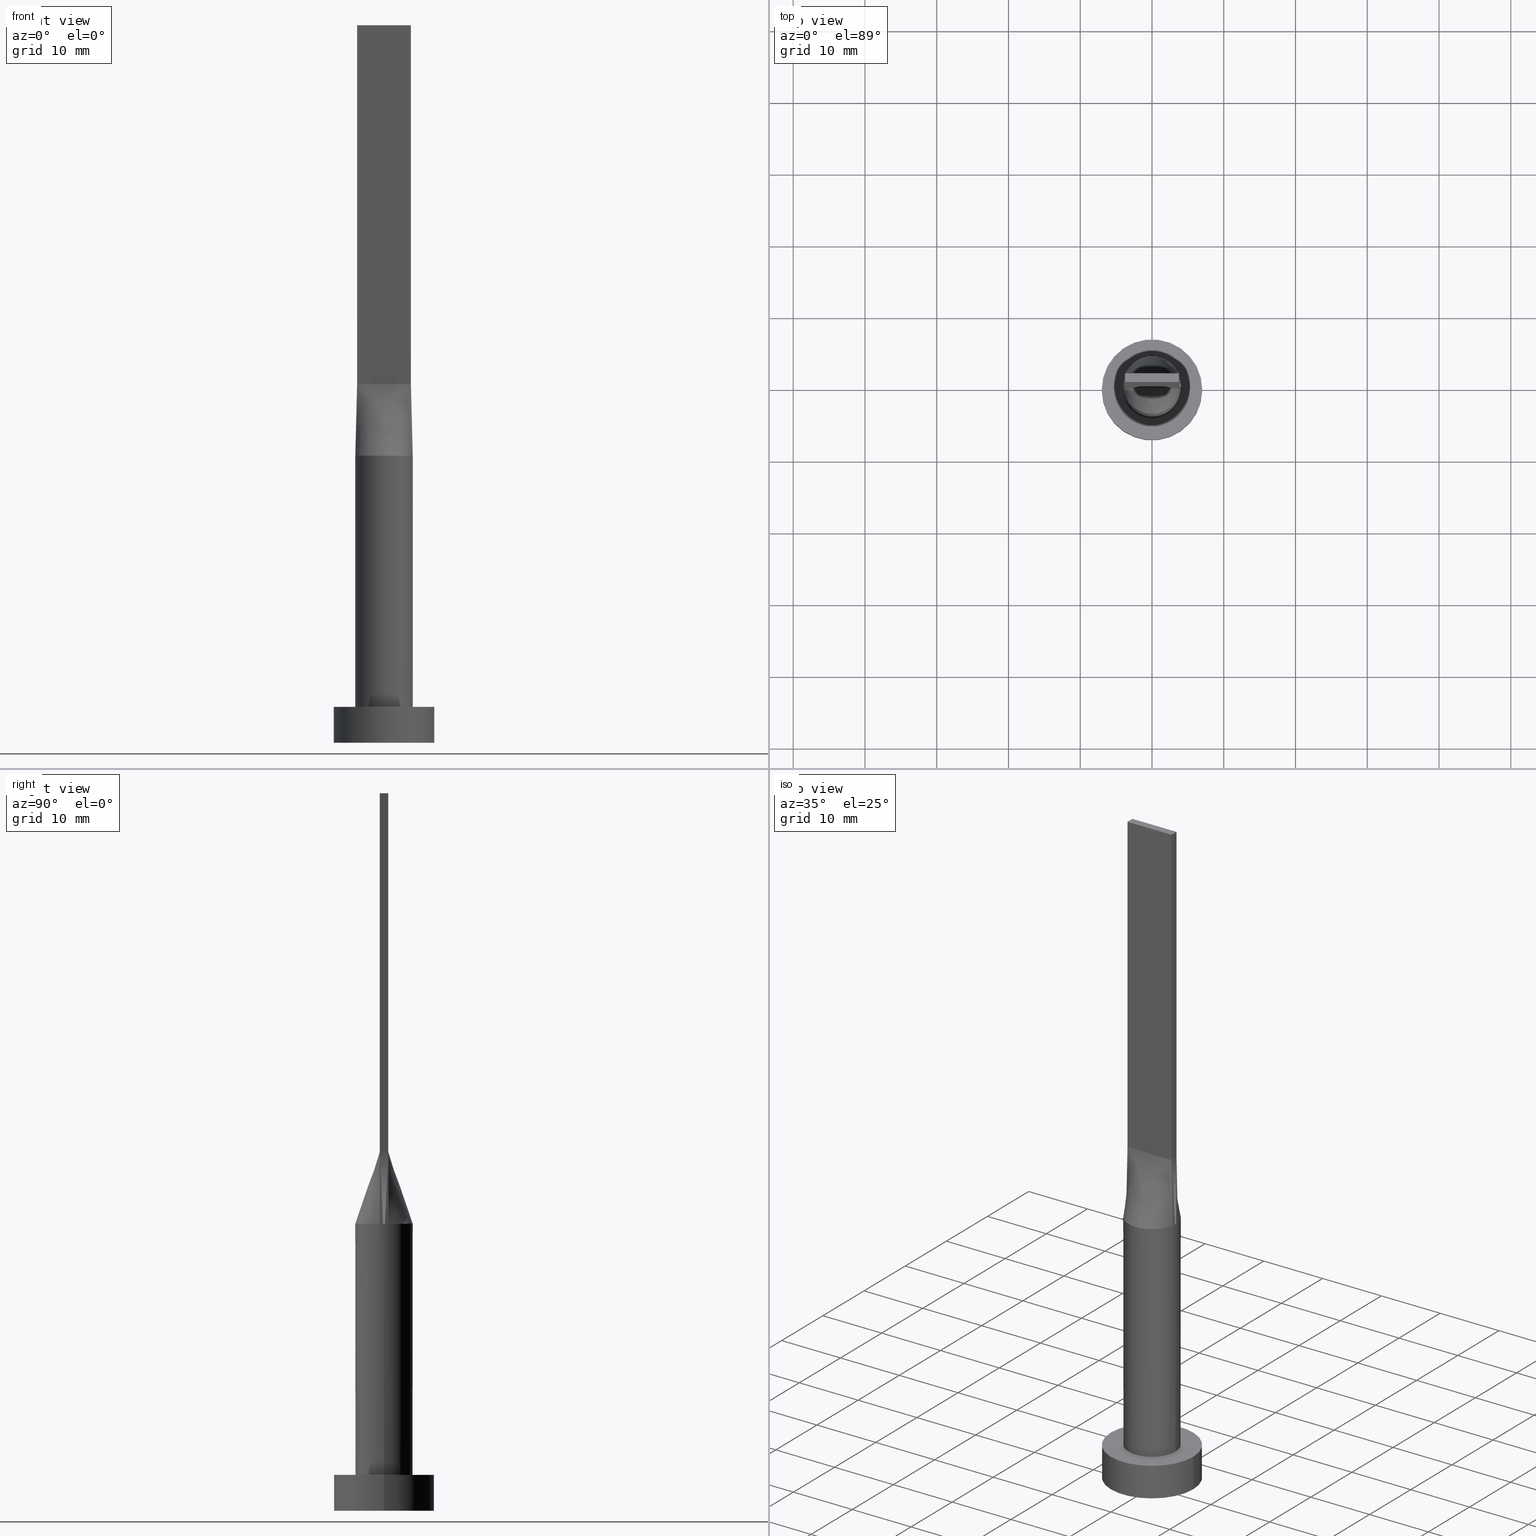
[diagram: canonical four-view strip — front | top / right | iso, engineering-drawing reading convention]
A machine part, canonical four-view strip (front | top / right | iso — engineering-drawing reading convention). The complete STEP part file that produces these views, byte-faithful:
ISO-10303-21;
HEADER;
FILE_DESCRIPTION (( 'STEP AP203' ),
    '1' );
FILE_NAME ('b42a.STEP',
    '2023-02-13T10:47:31',
    ( '' ),
    ( '' ),
    'SwSTEP 2.0',
    'SolidWorks 2019',
    '' );
FILE_SCHEMA (( 'CONFIG_CONTROL_DESIGN' ));
ENDSEC;

DATA;
#1 = DIRECTION ( 'NONE',  ( 1.000000000000000000, 0.000000000000000000, 0.000000000000000000 ) ) ;
#2 = EDGE_CURVE ( 'NONE', #550, #377, #433, .T. ) ;
#3 = VECTOR ( 'NONE', #465, 1000.000000000000000 ) ;
#4 = PRODUCT_DEFINITION_FORMATION_WITH_SPECIFIED_SOURCE ( 'LIBOVOLN�', '', #450, .NOT_KNOWN. ) ;
#5 = CARTESIAN_POINT ( 'NONE',  ( 3.750000000000000000, -0.5999999999999997558, 100.0000000000000000 ) ) ;
#6 = ORIENTED_EDGE ( 'NONE', *, *, #46, .F. ) ;
#7 = EDGE_CURVE ( 'NONE', #512, #522, #333, .T. ) ;
#8 = APPLICATION_PROTOCOL_DEFINITION ( 'international standard', 'config_control_design', 1994, #268 ) ;
#9 = CARTESIAN_POINT ( 'NONE',  ( 3.800365609718893367, -1.311488165564686614, 40.00000000000001421 ) ) ;
#10 = ADVANCED_FACE ( 'NONE', ( #198 ), #516, .F. ) ;
#11 = EDGE_LOOP ( 'NONE', ( #253, #124, #89, #259, #195, #507 ) ) ;
#12 = APPROVAL_STATUS ( 'not_yet_approved' ) ;
#13 = ADVANCED_FACE ( 'NONE', ( #36 ), #473, .T. ) ;
#14 = AXIS2_PLACEMENT_3D ( 'NONE', #97, #454, #223 ) ;
#15 = CIRCLE ( 'NONE', #135, 7.000000000000000000 ) ;
#16 = CARTESIAN_POINT ( 'NONE',  ( 1.250000000000001998, -0.5999999999999996447, 50.00000000000000000 ) ) ;
#17 = DIRECTION ( 'NONE',  ( 0.000000000000000000, 0.000000000000000000, 1.000000000000000000 ) ) ;
#18 = CARTESIAN_POINT ( 'NONE',  ( -3.849881263833410561, 0.6159810022133451746, 45.00000000000000000 ) ) ;
#19 = CARTESIAN_POINT ( 'NONE',  ( 0.000000000000000000, 0.000000000000000000, 5.000000000000000000 ) ) ;
#20 = CARTESIAN_POINT ( 'NONE',  ( -1.562500000000004441, 0.6000000000000000888, 50.00000000000000000 ) ) ;
#21 = CARTESIAN_POINT ( 'NONE',  ( -3.461914487322979905, 2.043998057340944197, 40.00000000000000711 ) ) ;
#22 = ORIENTED_EDGE ( 'NONE', *, *, #395, .F. ) ;
#23 = CARTESIAN_POINT ( 'NONE',  ( 0.5684794080625145130, 4.000000000000000000, 39.99999999999999289 ) ) ;
#24 = EDGE_CURVE ( 'NONE', #377, #481, #34, .T. ) ;
#25 = FACE_OUTER_BOUND ( 'NONE', #131, .T. ) ;
#26 = EDGE_LOOP ( 'NONE', ( #529, #437 ) ) ;
#27 = CARTESIAN_POINT ( 'NONE',  ( -2.127794970397209884, 3.430476893735948440, 39.99999999999999289 ) ) ;
#28 = ADVANCED_FACE ( 'NONE', ( #387 ), #252, .T. ) ;
#29 = CARTESIAN_POINT ( 'NONE',  ( -3.897760447583618948, -0.9569750049467102837, 40.00000000000000000 ) ) ;
#30 = ORIENTED_EDGE ( 'NONE', *, *, #7, .F. ) ;
#31 = CARTESIAN_POINT ( 'NONE',  ( 0.000000000000000000, 0.000000000000000000, 40.00000000000000000 ) ) ;
#32 = CARTESIAN_POINT ( 'NONE',  ( 0.000000000000000000, 0.000000000000000000, 40.00000000000000000 ) ) ;
#33 = CARTESIAN_POINT ( 'NONE',  ( 7.000000000000000000, 8.572527594031473190E-16, 5.000000000000000000 ) ) ;
#34 = LINE ( 'NONE', #527, #439 ) ;
#35 = CARTESIAN_POINT ( 'NONE',  ( 1.134810363096318664, 3.874001625491799050, 40.00000000000000000 ) ) ;
#36 = FACE_OUTER_BOUND ( 'NONE', #554, .T. ) ;
#37 = CARTESIAN_POINT ( 'NONE',  ( 0.5684794080625145130, 4.000000000000000000, 39.99999999999999289 ) ) ;
#38 = MANIFOLD_SOLID_BREP ( 'P�idat vysunut�m5', #98 ) ;
#39 = CARTESIAN_POINT ( 'NONE',  ( 3.949762527666821565, -0.6319620044266909265, 40.00000000000000000 ) ) ;
#40 = CARTESIAN_POINT ( 'NONE',  ( 0.5684794080625150681, -4.000000000000000888, 40.00000000000000000 ) ) ;
#41 = CIRCLE ( 'NONE', #76, 4.000000000000000000 ) ;
#42 = ORIENTED_EDGE ( 'NONE', *, *, #313, .F. ) ;
#43 = DIRECTION ( 'NONE',  ( -1.000000000000000000, 0.000000000000000000, 0.000000000000000000 ) ) ;
#44 = EDGE_CURVE ( 'NONE', #306, #360, #427, .T. ) ;
#45 = CARTESIAN_POINT ( 'NONE',  ( 0.3125000000000016098, -0.5999999999999995337, 50.00000000000000000 ) ) ;
#46 = EDGE_CURVE ( 'NONE', #368, #474, #242, .T. ) ;
#47 = LINE ( 'NONE', #5, #467 ) ;
#48 = LOCAL_TIME ( 11, 47, 31.00000000000000000, #90 ) ;
#49 = EDGE_LOOP ( 'NONE', ( #339, #358, #501, #546 ) ) ;
#50 = CARTESIAN_POINT ( 'NONE',  ( -1.562499999999998002, -0.5999999999999994227, 50.00000000000000000 ) ) ;
#51 = APPROVAL_STATUS ( 'not_yet_approved' ) ;
#52 = DIRECTION ( 'NONE',  ( -0.000000000000000000, 1.000000000000000000, -0.000000000000000000 ) ) ;
#53 = COORDINATED_UNIVERSAL_TIME_OFFSET ( 1, 0, .AHEAD. ) ;
#54 = CARTESIAN_POINT ( 'NONE',  ( 3.949762527666821565, -0.6319620044266891501, 40.00000000000000000 ) ) ;
#55 = EDGE_CURVE ( 'NONE', #377, #74, #200, .T. ) ;
#56 = CARTESIAN_POINT ( 'NONE',  ( 1.562499999999994893, 0.6000000000000000888, 50.00000000000000000 ) ) ;
#57 = CC_DESIGN_DATE_AND_TIME_ASSIGNMENT ( #320, #184, ( #105 ) ) ;
#58 = CARTESIAN_POINT ( 'NONE',  ( 3.750000000000000000, 0.6000000000000001998, 100.0000000000000000 ) ) ;
#59 = CARTESIAN_POINT ( 'NONE',  ( 3.800365609718893367, 1.311488165564687058, 40.00000000000000711 ) ) ;
#60 = CARTESIAN_POINT ( 'NONE',  ( 0.000000000000000000, 0.000000000000000000, 5.000000000000000000 ) ) ;
#61 = CARTESIAN_POINT ( 'NONE',  ( -3.800365609718893811, 1.311488165564686392, 40.00000000000000000 ) ) ;
#62 = AXIS2_PLACEMENT_3D ( 'NONE', #458, #363, #327 ) ;
#63 =( GEOMETRIC_REPRESENTATION_CONTEXT ( 3 ) GLOBAL_UNCERTAINTY_ASSIGNED_CONTEXT ( ( #245 ) ) GLOBAL_UNIT_ASSIGNED_CONTEXT ( ( #206, #238, #444 ) ) REPRESENTATION_CONTEXT ( 'NONE', 'WORKASPACE' ) );
#64 = VECTOR ( 'NONE', #225, 1000.000000000000000 ) ;
#65 = FACE_BOUND ( 'NONE', #160, .T. ) ;
#66 = DATE_AND_TIME ( #187, #349 ) ;
#67 = CARTESIAN_POINT ( 'NONE',  ( 3.461914487322979017, 2.043998057340944197, 40.00000000000000000 ) ) ;
#68 = CARTESIAN_POINT ( 'NONE',  ( -3.949762527666821565, -0.6319620044266894832, 40.00000000000000000 ) ) ;
#69 = EDGE_LOOP ( 'NONE', ( #334, #22, #217, #410 ) ) ;
#70 = CARTESIAN_POINT ( 'NONE',  ( -3.897760447583618504, 0.9569750049467115049, 40.00000000000000000 ) ) ;
#71 = LINE ( 'NONE', #102, #391 ) ;
#72 = DIRECTION ( 'NONE',  ( -1.000000000000000000, 0.000000000000000000, 0.000000000000000000 ) ) ;
#73 = VECTOR ( 'NONE', #271, 1000.000000000000000 ) ;
#74 = VERTEX_POINT ( 'NONE', #574 ) ;
#75 = DIRECTION ( 'NONE',  ( 0.000000000000000000, -0.000000000000000000, -1.000000000000000000 ) ) ;
#76 = AXIS2_PLACEMENT_3D ( 'NONE', #255, #482, #196 ) ;
#77 = DIRECTION ( 'NONE',  ( 0.000000000000000000, 0.000000000000000000, 1.000000000000000000 ) ) ;
#78 = VERTEX_POINT ( 'NONE', #384 ) ;
#79 = LINE ( 'NONE', #251, #185 ) ;
#80 = DIRECTION ( 'NONE',  ( 0.000000000000000000, 0.000000000000000000, 1.000000000000000000 ) ) ;
#81 = ORIENTED_EDGE ( 'NONE', *, *, #220, .T. ) ;
#82 = CARTESIAN_POINT ( 'NONE',  ( 3.750000000000000000, -0.5999999999999997558, 100.0000000000000000 ) ) ;
#83 = FACE_OUTER_BOUND ( 'NONE', #84, .T. ) ;
#84 = EDGE_LOOP ( 'NONE', ( #314, #183, #316, #470, #107 ) ) ;
#85 = AXIS2_PLACEMENT_3D ( 'NONE', #32, #248, #106 ) ;
#86 = CARTESIAN_POINT ( 'NONE',  ( -3.750000000000000000, -0.5999999999999993117, 50.00000000000000000 ) ) ;
#87 = VECTOR ( 'NONE', #213, 1000.000000000000000 ) ;
#88 = VECTOR ( 'NONE', #431, 1000.000000000000000 ) ;
#89 = ORIENTED_EDGE ( 'NONE', *, *, #565, .F. ) ;
#90 = COORDINATED_UNIVERSAL_TIME_OFFSET ( 1, 0, .AHEAD. ) ;
#91 = PERSON_AND_ORGANIZATION ( #224, #166 ) ;
#92 = CARTESIAN_POINT ( 'NONE',  ( -3.749999999999999556, 0.3999999999999975797, 50.00000000000000000 ) ) ;
#93 = PERSON_AND_ORGANIZATION_ROLE ( 'creator' ) ;
#94 = CC_DESIGN_PERSON_AND_ORGANIZATION_ASSIGNMENT ( #535, #301, ( #4 ) ) ;
#95 = DIRECTION ( 'NONE',  ( 0.000000000000000000, 0.000000000000000000, 1.000000000000000000 ) ) ;
#96 = CARTESIAN_POINT ( 'NONE',  ( -3.749999999999999556, -0.2000000000000034805, 50.00000000000000000 ) ) ;
#97 = CARTESIAN_POINT ( 'NONE',  ( 0.000000000000000000, 0.000000000000000000, 5.000000000000000000 ) ) ;
#98 = CLOSED_SHELL ( 'NONE', ( #28, #480, #285, #149, #10, #114, #171, #353, #222, #256, #347, #240, #417, #401, #13 ) ) ;
#99 = EDGE_LOOP ( 'NONE', ( #249, #291, #157, #461, #434 ) ) ;
#100 = DIRECTION ( 'NONE',  ( 1.000000000000000000, -5.782411586589357392E-17, 0.000000000000000000 ) ) ;
#101 = CARTESIAN_POINT ( 'NONE',  ( 7.000000000000000000, 8.572527594031473190E-16, 0.000000000000000000 ) ) ;
#102 = CARTESIAN_POINT ( 'NONE',  ( -3.750000000000000000, 0.6000000000000001998, 100.0000000000000000 ) ) ;
#103 = CARTESIAN_POINT ( 'NONE',  ( 3.219262664220058134, 2.422342486356523938, 39.99999999999999289 ) ) ;
#104 = CARTESIAN_POINT ( 'NONE',  ( 3.950116941581656604, -0.6320178829360038053, 40.00000000000000000 ) ) ;
#105 = SECURITY_CLASSIFICATION ( '', '', #452 ) ;
#106 = DIRECTION ( 'NONE',  ( 1.000000000000000000, 9.769962616701377556E-15, 0.000000000000000000 ) ) ;
#107 = ORIENTED_EDGE ( 'NONE', *, *, #177, .F. ) ;
#108 = CARTESIAN_POINT ( 'NONE',  ( 3.437499999999998668, 0.6000000000000001998, 50.00000000000000000 ) ) ;
#109 = CARTESIAN_POINT ( 'NONE',  ( -4.000000000000000000, 0.000000000000000000, 40.00000000000000000 ) ) ;
#110 = CARTESIAN_POINT ( 'NONE',  ( 4.000000000000000000, 4.898587196589412829E-16, 40.00000000000000000 ) ) ;
#111 = CARTESIAN_POINT ( 'NONE',  ( 3.750000000000000000, 0.6000000000000001998, 100.0000000000000000 ) ) ;
#112 = PRODUCT_DEFINITION_SHAPE ( 'NONE', 'NONE',  #420 ) ;
#113 = CARTESIAN_POINT ( 'NONE',  ( 0.000000000000000000, 0.000000000000000000, 100.0000000000000000 ) ) ;
#114 = ADVANCED_FACE ( 'NONE', ( #152 ), #561, .T. ) ;
#115 = ORIENTED_EDGE ( 'NONE', *, *, #203, .T. ) ;
#116 = CARTESIAN_POINT ( 'NONE',  ( 3.800365609718893367, 1.311488165564687058, 40.00000000000000711 ) ) ;
#117 = DIRECTION ( 'NONE',  ( 0.000000000000000000, -1.000000000000000000, 0.000000000000000000 ) ) ;
#118 = DIRECTION ( 'NONE',  ( 0.000000000000000000, 0.000000000000000000, 1.000000000000000000 ) ) ;
#119 = CARTESIAN_POINT ( 'NONE',  ( 3.219262664220059023, -2.422342486356523938, 40.00000000000000711 ) ) ;
#120 = ORIENTED_EDGE ( 'NONE', *, *, #555, .F. ) ;
#121 = CARTESIAN_POINT ( 'NONE',  ( -3.800365609718893811, 1.311488165564686392, 40.00000000000000000 ) ) ;
#122 = CARTESIAN_POINT ( 'NONE',  ( 3.749999999999999556, -0.3999999999999993006, 50.00000000000000000 ) ) ;
#123 = LINE ( 'NONE', #486, #398 ) ;
#124 = ORIENTED_EDGE ( 'NONE', *, *, #44, .F. ) ;
#125 = CARTESIAN_POINT ( 'NONE',  ( 3.999842262273348936, 9.852009208038395466E-16, 40.00000000000000000 ) ) ;
#126 = CARTESIAN_POINT ( 'NONE',  ( 3.125000000000000000, -0.5999999999999996447, 50.00000000000000000 ) ) ;
#127 = APPLICATION_PROTOCOL_DEFINITION ( 'international standard', 'config_control_design', 1994, #260 ) ;
#128 = EDGE_CURVE ( 'NONE', #457, #522, #500, .T. ) ;
#129 = ADVANCED_BREP_SHAPE_REPRESENTATION ( 'b42a', ( #38, #151 ), #63 ) ;
#130 = VERTEX_POINT ( 'NONE', #294 ) ;
#131 = EDGE_LOOP ( 'NONE', ( #326, #288, #275, #407 ) ) ;
#132 = APPROVAL_ROLE ( '' ) ;
#133 = EDGE_LOOP ( 'NONE', ( #81, #371, #205, #517 ) ) ;
#134 = CALENDAR_DATE ( 2023, 13, 2 ) ;
#135 = AXIS2_PLACEMENT_3D ( 'NONE', #19, #181, #509 ) ;
#136 = CARTESIAN_POINT ( 'NONE',  ( 3.750000000000000000, -0.5999999999999997558, 50.00000000000000000 ) ) ;
#137 = SHAPE_DEFINITION_REPRESENTATION ( #112, #129 ) ;
#138 = EDGE_CURVE ( 'NONE', #155, #78, #479, .T. ) ;
#139 = CARTESIAN_POINT ( 'NONE',  ( -2.187499999999998668, -0.5999999999999994227, 50.00000000000000000 ) ) ;
#140 = PERSON_AND_ORGANIZATION ( #224, #166 ) ;
#141 = CARTESIAN_POINT ( 'NONE',  ( -3.750000000000000000, 0.6000000000000001998, 100.0000000000000000 ) ) ;
#142 = CARTESIAN_POINT ( 'NONE',  ( -2.187500000000003109, 0.6000000000000000888, 50.00000000000000000 ) ) ;
#143 = LINE ( 'NONE', #322, #445 ) ;
#144 = APPROVAL_DATE_TIME ( #66, #539 ) ;
#145 = CARTESIAN_POINT ( 'NONE',  ( 3.897760447583618948, 0.9569750049467118380, 40.00000000000000000 ) ) ;
#146 = CARTESIAN_POINT ( 'NONE',  ( -3.750000000000000000, 0.6000000000000001998, 50.00000000000000000 ) ) ;
#147 = VECTOR ( 'NONE', #469, 1000.000000000000000 ) ;
#148 = PLANE ( 'NONE',  #318 ) ;
#149 = ADVANCED_FACE ( 'NONE', ( #65, #380 ), #148, .T. ) ;
#150 = ORIENTED_EDGE ( 'NONE', *, *, #456, .F. ) ;
#151 = AXIS2_PLACEMENT_3D ( 'NONE', #216, #305, #351 ) ;
#152 = FACE_OUTER_BOUND ( 'NONE', #11, .T. ) ;
#153 = DIRECTION ( 'NONE',  ( 1.000000000000000000, 0.000000000000000000, 0.000000000000000000 ) ) ;
#154 = CARTESIAN_POINT ( 'NONE',  ( 0.000000000000000000, 0.000000000000000000, 40.00000000000000000 ) ) ;
#155 = VERTEX_POINT ( 'NONE', #422 ) ;
#156 = CARTESIAN_POINT ( 'NONE',  ( -4.000000000000000000, 0.000000000000000000, 5.000000000000000000 ) ) ;
#157 = ORIENTED_EDGE ( 'NONE', *, *, #138, .T. ) ;
#158 = CIRCLE ( 'NONE', #221, 7.000000000000000000 ) ;
#159 = CIRCLE ( 'NONE', #232, 4.000000000000000000 ) ;
#160 = EDGE_LOOP ( 'NONE', ( #562, #201 ) ) ;
#161 = CARTESIAN_POINT ( 'NONE',  ( 2.553164211252348714, 3.116528153703943538, 40.00000000000000000 ) ) ;
#162 = CARTESIAN_POINT ( 'NONE',  ( -3.949762527666821565, -0.6319620044266894832, 40.00000000000000000 ) ) ;
#163 = FACE_OUTER_BOUND ( 'NONE', #99, .T. ) ;
#164 = CARTESIAN_POINT ( 'NONE',  ( 2.500000000000000444, -0.5999999999999996447, 50.00000000000000000 ) ) ;
#165 = PERSON_AND_ORGANIZATION ( #224, #166 ) ;
#166 = ORGANIZATION ( 'NEUR�EN�', 'NEUR�EN�', '' ) ;
#167 = PRODUCT_RELATED_PRODUCT_CATEGORY ( 'detail', '', ( #450 ) ) ;
#168 = CARTESIAN_POINT ( 'NONE',  ( -3.750000000000000000, 0.6000000000000001998, 100.0000000000000000 ) ) ;
#169 = AXIS2_PLACEMENT_3D ( 'NONE', #376, #524, #72 ) ;
#170 = CARTESIAN_POINT ( 'NONE',  ( -2.499999999999998668, -0.5999999999999994227, 50.00000000000000000 ) ) ;
#171 = ADVANCED_FACE ( 'NONE', ( #25 ), #581, .T. ) ;
#172 = AXIS2_PLACEMENT_3D ( 'NONE', #552, #375, #231 ) ;
#173 = APPROVAL_DATE_TIME ( #408, #446 ) ;
#174 = CC_DESIGN_APPROVAL ( #539, ( #105 ) ) ;
#175 = CARTESIAN_POINT ( 'NONE',  ( 3.750000000000000000, -0.5999999999999997558, 100.0000000000000000 ) ) ;
#176 = CARTESIAN_POINT ( 'NONE',  ( 2.553164211252348270, -3.116528153703943094, 39.99999999999999289 ) ) ;
#177 = EDGE_CURVE ( 'NONE', #130, #550, #440, .T. ) ;
#178 = VERTEX_POINT ( 'NONE', #499 ) ;
#179 = CARTESIAN_POINT ( 'NONE',  ( 3.750000000000000000, 0.6000000000000001998, 50.00000000000000000 ) ) ;
#180 = ORIENTED_EDGE ( 'NONE', *, *, #412, .F. ) ;
#181 = DIRECTION ( 'NONE',  ( 0.000000000000000000, 0.000000000000000000, 1.000000000000000000 ) ) ;
#182 = LINE ( 'NONE', #277, #87 ) ;
#183 = ORIENTED_EDGE ( 'NONE', *, *, #365, .T. ) ;
#184 = DATE_TIME_ROLE ( 'classification_date' ) ;
#185 = VECTOR ( 'NONE', #405, 1000.000000000000000 ) ;
#186 = ORIENTED_EDGE ( 'NONE', *, *, #560, .F. ) ;
#187 = CALENDAR_DATE ( 2023, 13, 2 ) ;
#188 = CARTESIAN_POINT ( 'NONE',  ( -2.500000000000002665, 0.6000000000000000888, 50.00000000000000000 ) ) ;
#189 = DESIGN_CONTEXT ( 'detailed design', #268, 'design' ) ;
#190 = DIRECTION ( 'NONE',  ( -0.000000000000000000, -0.000000000000000000, -1.000000000000000000 ) ) ;
#191 = ORIENTED_EDGE ( 'NONE', *, *, #428, .T. ) ;
#192 = LINE ( 'NONE', #58, #311 ) ;
#193 = CARTESIAN_POINT ( 'NONE',  ( -3.219262664220059023, 2.422342486356523938, 39.99999999999998579 ) ) ;
#194 = CARTESIAN_POINT ( 'NONE',  ( -3.437499999999999556, -0.5999999999999993117, 50.00000000000000000 ) ) ;
#195 = ORIENTED_EDGE ( 'NONE', *, *, #7, .T. ) ;
#196 = DIRECTION ( 'NONE',  ( 1.000000000000000000, 0.000000000000000000, 0.000000000000000000 ) ) ;
#197 = DIRECTION ( 'NONE',  ( 0.000000000000000000, 0.000000000000000000, 1.000000000000000000 ) ) ;
#198 = FACE_OUTER_BOUND ( 'NONE', #26, .T. ) ;
#199 = ORIENTED_EDGE ( 'NONE', *, *, #2, .T. ) ;
#200 = LINE ( 'NONE', #569, #3 ) ;
#201 = ORIENTED_EDGE ( 'NONE', *, *, #128, .F. ) ;
#202 = DIRECTION ( 'NONE',  ( -0.000000000000000000, -0.000000000000000000, -1.000000000000000000 ) ) ;
#203 = EDGE_CURVE ( 'NONE', #178, #577, #123, .T. ) ;
#204 = CARTESIAN_POINT ( 'NONE',  ( -3.750000000000000000, 0.6000000000000001998, 50.00000000000000000 ) ) ;
#205 = ORIENTED_EDGE ( 'NONE', *, *, #304, .F. ) ;
#206 =( LENGTH_UNIT ( ) NAMED_UNIT ( * ) SI_UNIT ( .MILLI., .METRE. ) );
#207 = DIRECTION ( 'NONE',  ( 0.000000000000000000, -1.000000000000000000, 0.000000000000000000 ) ) ;
#208 = EDGE_CURVE ( 'NONE', #522, #457, #281, .T. ) ;
#209 = CC_DESIGN_APPROVAL ( #362, ( #420 ) ) ;
#210 = CARTESIAN_POINT ( 'NONE',  ( 3.461914487322980349, -2.043998057340943753, 40.00000000000002842 ) ) ;
#211 = EDGE_CURVE ( 'NONE', #78, #550, #533, .T. ) ;
#212 = ORIENTED_EDGE ( 'NONE', *, *, #321, .T. ) ;
#213 = DIRECTION ( 'NONE',  ( -0.01997216621675832263, 0.003195546594681128623, 0.9997954296047624201 ) ) ;
#214 = CARTESIAN_POINT ( 'NONE',  ( 3.437499999999999556, -0.5999999999999996447, 50.00000000000000000 ) ) ;
#215 = ORIENTED_EDGE ( 'NONE', *, *, #304, .T. ) ;
#216 = CARTESIAN_POINT ( 'NONE',  ( 0.000000000000000000, 0.000000000000000000, 0.000000000000000000 ) ) ;
#217 = ORIENTED_EDGE ( 'NONE', *, *, #321, .F. ) ;
#218 = CARTESIAN_POINT ( 'NONE',  ( 1.134810363096319108, -3.874001625491798162, 40.00000000000000000 ) ) ;
#219 = CARTESIAN_POINT ( 'NONE',  ( -3.749999999999999556, -0.4000000000000020206, 50.00000000000000000 ) ) ;
#220 = EDGE_CURVE ( 'NONE', #74, #78, #297, .T. ) ;
#221 = AXIS2_PLACEMENT_3D ( 'NONE', #443, #396, #1 ) ;
#222 = ADVANCED_FACE ( 'NONE', ( #83 ), #485, .T. ) ;
#223 = DIRECTION ( 'NONE',  ( 1.000000000000000000, 0.000000000000000000, 0.000000000000000000 ) ) ;
#224 = PERSON ( 'NEUR�EN�', 'NEUR�EN�', 'NEUR�EN�', ('NEUR�EN�'), ('NEUR�EN�'), ('NEUR�EN�') ) ;
#225 = DIRECTION ( 'NONE',  ( 0.000000000000000000, -1.000000000000000000, 0.000000000000000000 ) ) ;
#226 = CARTESIAN_POINT ( 'NONE',  ( 0.3124999999999934497, 0.6000000000000000888, 50.00000000000000711 ) ) ;
#227 = EDGE_LOOP ( 'NONE', ( #6, #388, #115, #566 ) ) ;
#228 = EDGE_CURVE ( 'NONE', #577, #474, #158, .T. ) ;
#229 = FACE_OUTER_BOUND ( 'NONE', #49, .T. ) ;
#230 = CARTESIAN_POINT ( 'NONE',  ( 2.499999999999996003, 0.6000000000000000888, 50.00000000000000000 ) ) ;
#231 = DIRECTION ( 'NONE',  ( -1.000000000000000000, 0.000000000000000000, 0.000000000000000000 ) ) ;
#232 = AXIS2_PLACEMENT_3D ( 'NONE', #31, #197, #568 ) ;
#233 = DIRECTION ( 'NONE',  ( 1.000000000000000000, 0.000000000000000000, -0.000000000000000000 ) ) ;
#234 = COORDINATED_UNIVERSAL_TIME_OFFSET ( 1, 0, .AHEAD. ) ;
#235 = CARTESIAN_POINT ( 'NONE',  ( 1.249999999999994671, 0.6000000000000000888, 50.00000000000000000 ) ) ;
#236 = CARTESIAN_POINT ( 'NONE',  ( -3.750000000000000000, -0.5999999999999993117, 50.00000000000000000 ) ) ;
#237 = EDGE_LOOP ( 'NONE', ( #381, #531, #263, #542 ) ) ;
#238 =( NAMED_UNIT ( * ) PLANE_ANGLE_UNIT ( ) SI_UNIT ( $, .RADIAN. ) );
#239 = CARTESIAN_POINT ( 'NONE',  ( -3.897760447583618504, 0.9569750049467115049, 40.00000000000000000 ) ) ;
#240 = ADVANCED_FACE ( 'NONE', ( #460 ), #331, .F. ) ;
#241 = VECTOR ( 'NONE', #429, 1000.000000000000000 ) ;
#242 = LINE ( 'NONE', #373, #147 ) ;
#243 = EDGE_LOOP ( 'NONE', ( #199, #150, #180, #374 ) ) ;
#244 = CARTESIAN_POINT ( 'NONE',  ( -3.950111798046394007, -0.6320171791297864994, 40.00000000000000000 ) ) ;
#245 = UNCERTAINTY_MEASURE_WITH_UNIT (LENGTH_MEASURE( 1.000000000000000082E-05 ), #206, 'distance_accuracy_value', 'NONE');
#246 = CARTESIAN_POINT ( 'NONE',  ( 3.983043858920071845, -0.4239536840938781248, 40.00000000000000000 ) ) ;
#247 = LOCAL_TIME ( 11, 47, 31.00000000000000000, #307 ) ;
#248 = DIRECTION ( 'NONE',  ( 0.000000000000000000, 0.000000000000000000, 1.000000000000000000 ) ) ;
#249 = ORIENTED_EDGE ( 'NONE', *, *, #44, .T. ) ;
#250 = DIRECTION ( 'NONE',  ( 1.000000000000000000, 0.000000000000000000, 0.000000000000000000 ) ) ;
#251 = CARTESIAN_POINT ( 'NONE',  ( 3.750000000000000000, 0.6000000000000001998, 100.0000000000000000 ) ) ;
#252 = CYLINDRICAL_SURFACE ( 'NONE', #169, 4.000000000000000000 ) ;
#253 = ORIENTED_EDGE ( 'NONE', *, *, #511, .F. ) ;
#254 = CARTESIAN_POINT ( 'NONE',  ( -7.000000000000000000, 0.000000000000000000, 0.000000000000000000 ) ) ;
#255 = CARTESIAN_POINT ( 'NONE',  ( 0.000000000000000000, 0.000000000000000000, 40.00000000000000000 ) ) ;
#256 = ADVANCED_FACE ( 'NONE', ( #421 ), #504, .T. ) ;
#257 = CIRCLE ( 'NONE', #282, 7.000000000000000000 ) ;
#258 = CARTESIAN_POINT ( 'NONE',  ( -2.553164211252349158, -3.116528153703943094, 40.00000000000000711 ) ) ;
#259 = ORIENTED_EDGE ( 'NONE', *, *, #365, .F. ) ;
#260 = APPLICATION_CONTEXT ( 'configuration controlled 3d designs of mechanical parts and assemblies' ) ;
#261 = CC_DESIGN_PERSON_AND_ORGANIZATION_ASSIGNMENT ( #91, #93, ( #420 ) ) ;
#262 = VECTOR ( 'NONE', #117, 1000.000000000000000 ) ;
#263 = ORIENTED_EDGE ( 'NONE', *, *, #211, .F. ) ;
#264 = DATE_AND_TIME ( #134, #48 ) ;
#265 = PLANE ( 'NONE',  #578 ) ;
#266 = CARTESIAN_POINT ( 'NONE',  ( -3.749999999999999556, 0.1999999999999963196, 50.00000000000000000 ) ) ;
#267 = COORDINATED_UNIVERSAL_TIME_OFFSET ( 1, 0, .AHEAD. ) ;
#268 = APPLICATION_CONTEXT ( 'configuration controlled 3d designs of mechanical parts and assemblies' ) ;
#269 = CARTESIAN_POINT ( 'NONE',  ( 2.127794970397208552, -3.430476893735948440, 39.99999999999999289 ) ) ;
#270 = CARTESIAN_POINT ( 'NONE',  ( 0.000000000000000000, 0.000000000000000000, 5.000000000000000000 ) ) ;
#271 = DIRECTION ( 'NONE',  ( 0.01997216621675832263, -0.003195546594681204517, 0.9997954296047624201 ) ) ;
#272 = ORIENTED_EDGE ( 'NONE', *, *, #383, .T. ) ;
#273 = LOCAL_TIME ( 11, 47, 31.00000000000000000, #267 ) ;
#274 = FACE_OUTER_BOUND ( 'NONE', #227, .T. ) ;
#275 = ORIENTED_EDGE ( 'NONE', *, *, #55, .F. ) ;
#276 = PERSON_AND_ORGANIZATION ( #224, #166 ) ;
#277 = CARTESIAN_POINT ( 'NONE',  ( 3.849881263833410561, -0.6159810022133445084, 45.00000000000000000 ) ) ;
#278 = CARTESIAN_POINT ( 'NONE',  ( 1.134810363096318664, 3.874001625491799050, 40.00000000000000000 ) ) ;
#279 = AXIS2_PLACEMENT_3D ( 'NONE', #113, #290, #280 ) ;
#280 = DIRECTION ( 'NONE',  ( 1.000000000000000000, 0.000000000000000000, -0.000000000000000000 ) ) ;
#281 = CIRCLE ( 'NONE', #14, 4.000000000000000000 ) ;
#282 = AXIS2_PLACEMENT_3D ( 'NONE', #573, #435, #571 ) ;
#283 = DIRECTION ( 'NONE',  ( 0.000000000000000000, 0.000000000000000000, 1.000000000000000000 ) ) ;
#284 = CARTESIAN_POINT ( 'NONE',  ( -2.553164211252348714, 3.116528153703943538, 39.99999999999999289 ) ) ;
#285 = ADVANCED_FACE ( 'NONE', ( #274 ), #472, .T. ) ;
#286 = CARTESIAN_POINT ( 'NONE',  ( -3.125000000000000888, 0.6000000000000000888, 50.00000000000000000 ) ) ;
#287 = CARTESIAN_POINT ( 'NONE',  ( 0.000000000000000000, 0.000000000000000000, 0.000000000000000000 ) ) ;
#288 = ORIENTED_EDGE ( 'NONE', *, *, #336, .T. ) ;
#289 = CARTESIAN_POINT ( 'NONE',  ( 3.461914487322979017, 2.043998057340944197, 40.00000000000000000 ) ) ;
#290 = DIRECTION ( 'NONE',  ( 0.000000000000000000, 0.000000000000000000, 1.000000000000000000 ) ) ;
#291 = ORIENTED_EDGE ( 'NONE', *, *, #555, .T. ) ;
#292 = PLANE ( 'NONE',  #342 ) ;
#293 = APPROVAL_PERSON_ORGANIZATION ( #276, #539, #513 ) ;
#294 = CARTESIAN_POINT ( 'NONE',  ( -3.950102418235696522, 0.6320155757311002320, 40.00000000000000000 ) ) ;
#295 = CARTESIAN_POINT ( 'NONE',  ( -1.134810363096319996, 3.874001625491799938, 40.00000000000000711 ) ) ;
#296 = CARTESIAN_POINT ( 'NONE',  ( -3.750000000000000000, -0.5999999999999993117, 100.0000000000000000 ) ) ;
#297 = LINE ( 'NONE', #483, #495 ) ;
#298 = ORIENTED_EDGE ( 'NONE', *, *, #211, .T. ) ;
#299 = CARTESIAN_POINT ( 'NONE',  ( -3.983043858920071845, 0.4239536840938776252, 40.00000000000000000 ) ) ;
#300 = AXIS2_PLACEMENT_3D ( 'NONE', #338, #80, #328 ) ;
#301 = PERSON_AND_ORGANIZATION_ROLE ( 'creator' ) ;
#302 = CARTESIAN_POINT ( 'NONE',  ( 3.749999999999999556, -0.1999999999999991784, 50.00000000000000000 ) ) ;
#303 = CARTESIAN_POINT ( 'NONE',  ( -2.127794970397209884, -3.430476893735947996, 40.00000000000000000 ) ) ;
#304 = EDGE_CURVE ( 'NONE', #570, #348, #143, .T. ) ;
#305 = DIRECTION ( 'NONE',  ( 0.000000000000000000, 0.000000000000000000, 1.000000000000000000 ) ) ;
#306 = VERTEX_POINT ( 'NONE', #104 ) ;
#307 = COORDINATED_UNIVERSAL_TIME_OFFSET ( 1, 0, .AHEAD. ) ;
#308 = AXIS2_PLACEMENT_3D ( 'NONE', #270, #17, #556 ) ;
#309 = EDGE_LOOP ( 'NONE', ( #120, #484, #448, #30, #498, #186 ) ) ;
#310 = DATE_TIME_ROLE ( 'creation_date' ) ;
#311 = VECTOR ( 'NONE', #551, 1000.000000000000000 ) ;
#312 = CARTESIAN_POINT ( 'NONE',  ( -3.949762527666821565, 0.6319620044266903713, 40.00000000000000000 ) ) ;
#313 = EDGE_CURVE ( 'NONE', #397, #550, #71, .T. ) ;
#314 = ORIENTED_EDGE ( 'NONE', *, *, #491, .T. ) ;
#315 = CARTESIAN_POINT ( 'NONE',  ( -3.219262664220059023, -2.422342486356523050, 39.99999999999999289 ) ) ;
#316 = ORIENTED_EDGE ( 'NONE', *, *, #24, .F. ) ;
#317 = DIRECTION ( 'NONE',  ( -1.000000000000000000, 5.782411586589358625E-17, 0.000000000000000000 ) ) ;
#318 = AXIS2_PLACEMENT_3D ( 'NONE', #564, #283, #233 ) ;
#319 = CARTESIAN_POINT ( 'NONE',  ( -3.437500000000000444, 0.6000000000000000888, 50.00000000000000000 ) ) ;
#320 = DATE_AND_TIME ( #508, #442 ) ;
#321 = EDGE_CURVE ( 'NONE', #350, #570, #426, .T. ) ;
#322 = CARTESIAN_POINT ( 'NONE',  ( 3.750000000000000000, -0.5999999999999997558, 100.0000000000000000 ) ) ;
#323 = CC_DESIGN_DATE_AND_TIME_ASSIGNMENT ( #264, #310, ( #420 ) ) ;
#324 = CYLINDRICAL_SURFACE ( 'NONE', #466, 7.000000000000000000 ) ;
#325 = CARTESIAN_POINT ( 'NONE',  ( -1.134810363096319996, 3.874001625491799938, 40.00000000000000711 ) ) ;
#326 = ORIENTED_EDGE ( 'NONE', *, *, #565, .T. ) ;
#327 = DIRECTION ( 'NONE',  ( -0.000000000000000000, 0.000000000000000000, -1.000000000000000000 ) ) ;
#328 = DIRECTION ( 'NONE',  ( 1.000000000000000000, 0.000000000000000000, 0.000000000000000000 ) ) ;
#329 = VECTOR ( 'NONE', #100, 1000.000000000000000 ) ;
#330 = AXIS2_PLACEMENT_3D ( 'NONE', #389, #382, #250 ) ;
#331 = PLANE ( 'NONE',  #62 ) ;
#332 = CARTESIAN_POINT ( 'NONE',  ( -3.800365609718892923, -1.311488165564685726, 40.00000000000000711 ) ) ;
#333 = LINE ( 'NONE', #109, #541 ) ;
#334 = ORIENTED_EDGE ( 'NONE', *, *, #55, .T. ) ;
#335 = CARTESIAN_POINT ( 'NONE',  ( -3.750000000000000000, 0.6000000000000001998, 50.00000000000000000 ) ) ;
#336 = EDGE_CURVE ( 'NONE', #306, #74, #182, .T. ) ;
#337 = AXIS2_PLACEMENT_3D ( 'NONE', #287, #77, #514 ) ;
#338 = CARTESIAN_POINT ( 'NONE',  ( 0.000000000000000000, 0.000000000000000000, 5.000000000000000000 ) ) ;
#339 = ORIENTED_EDGE ( 'NONE', *, *, #428, .F. ) ;
#340 = CARTESIAN_POINT ( 'NONE',  ( 0.000000000000000000, 0.000000000000000000, 40.00000000000000000 ) ) ;
#341 = CARTESIAN_POINT ( 'NONE',  ( 3.750000000000000000, 0.6000000000000001998, 100.0000000000000000 ) ) ;
#342 = AXIS2_PLACEMENT_3D ( 'NONE', #111, #207, #75 ) ;
#343 = CARTESIAN_POINT ( 'NONE',  ( -1.134810363096319996, -3.874001625491796830, 39.99999999999999289 ) ) ;
#344 = CARTESIAN_POINT ( 'NONE',  ( -0.5684794080625158452, 3.999999999999999112, 39.99999999999999289 ) ) ;
#345 = CARTESIAN_POINT ( 'NONE',  ( 3.983043858920071845, 0.4239536840938771811, 40.00000000000000000 ) ) ;
#346 = CARTESIAN_POINT ( 'NONE',  ( -3.983043858920070956, -0.4239536840938767370, 40.00000000000000000 ) ) ;
#347 = ADVANCED_FACE ( 'NONE', ( #487 ), #292, .F. ) ;
#348 = VERTEX_POINT ( 'NONE', #341 ) ;
#349 = LOCAL_TIME ( 11, 47, 31.00000000000000000, #53 ) ;
#350 = VERTEX_POINT ( 'NONE', #296 ) ;
#351 = DIRECTION ( 'NONE',  ( 1.000000000000000000, 0.000000000000000000, 0.000000000000000000 ) ) ;
#352 = B_SPLINE_SURFACE_WITH_KNOTS ( 'NONE', 3, 1, ( 
 ( #39, #438 ),
 ( #246, #122 ),
 ( #379, #302 ),
 ( #441, #386 ),
 ( #345, #394 ),
 ( #536, #432 ) ),
 .UNSPECIFIED., .F., .F., .F.,
 ( 4, 2, 4 ),
 ( 2, 2 ),
 ( 0.000000000000000000, 0.5000000000000000000, 1.000000000000000000 ),
 ( 0.000000000000000000, 1.000000000000000000 ),
 .UNSPECIFIED. ) ;
#353 = ADVANCED_FACE ( 'NONE', ( #163 ), #352, .T. ) ;
#354 = CALENDAR_DATE ( 2023, 13, 2 ) ;
#355 = DIRECTION ( 'NONE',  ( -1.000000000000000000, 0.000000000000000000, 0.000000000000000000 ) ) ;
#356 = CARTESIAN_POINT ( 'NONE',  ( -0.3124999999999982792, -0.5999999999999995337, 50.00000000000000711 ) ) ;
#357 = CIRCLE ( 'NONE', #330, 4.000000000000000000 ) ;
#358 = ORIENTED_EDGE ( 'NONE', *, *, #46, .T. ) ;
#359 = CARTESIAN_POINT ( 'NONE',  ( 2.187500000000000888, -0.5999999999999996447, 50.00000000000000000 ) ) ;
#360 = VERTEX_POINT ( 'NONE', #125 ) ;
#361 = PERSON_AND_ORGANIZATION_ROLE ( 'classification_officer' ) ;
#362 = APPROVAL ( #51, 'NEUR�EN�' ) ;
#363 = DIRECTION ( 'NONE',  ( 1.000000000000000000, 0.000000000000000000, -0.000000000000000000 ) ) ;
#364 = B_SPLINE_CURVE_WITH_KNOTS ( 'NONE', 3,
 ( #526, #378, #116, #289, #425, #161, #580, #35, #37, #344, #295, #532, #284, #523, #471, #121, #70, #567 ),
 .UNSPECIFIED., .F., .F.,
 ( 4, 2, 2, 2, 2, 2, 2, 2, 4 ),
 ( 0.000000000000000000, 0.1249999999999999445, 0.2499999999999998890, 0.3749999999999998335, 0.4999999999999997780, 0.6249999999999997780, 0.7499999999999998890, 0.8749999999999998890, 1.000000000000000000 ),
 .UNSPECIFIED. ) ;
#365 = EDGE_CURVE ( 'NONE', #512, #481, #159, .T. ) ;
#366 = CC_DESIGN_PERSON_AND_ORGANIZATION_ASSIGNMENT ( #459, #361, ( #105 ) ) ;
#367 = CARTESIAN_POINT ( 'NONE',  ( -0.6250000000000056621, 0.6000000000000000888, 50.00000000000000000 ) ) ;
#368 = VERTEX_POINT ( 'NONE', #33 ) ;
#369 = CARTESIAN_POINT ( 'NONE',  ( 4.000000000000000000, 4.898587196589412829E-16, 5.000000000000000000 ) ) ;
#370 = CARTESIAN_POINT ( 'NONE',  ( -0.3125000000000063283, 0.6000000000000000888, 50.00000000000000711 ) ) ;
#371 = ORIENTED_EDGE ( 'NONE', *, *, #383, .F. ) ;
#372 = CARTESIAN_POINT ( 'NONE',  ( 2.127794970397208107, 3.430476893735948885, 39.99999999999999289 ) ) ;
#373 = CARTESIAN_POINT ( 'NONE',  ( 7.000000000000000000, 8.572527594031473190E-16, 5.000000000000000000 ) ) ;
#374 = ORIENTED_EDGE ( 'NONE', *, *, #313, .T. ) ;
#375 = DIRECTION ( 'NONE',  ( -0.000000000000000000, -0.000000000000000000, -1.000000000000000000 ) ) ;
#376 = CARTESIAN_POINT ( 'NONE',  ( 0.000000000000000000, 0.000000000000000000, 40.00000000000000000 ) ) ;
#377 = VERTEX_POINT ( 'NONE', #478 ) ;
#378 = CARTESIAN_POINT ( 'NONE',  ( 3.897760447583618948, 0.9569750049467118380, 40.00000000000000000 ) ) ;
#379 = CARTESIAN_POINT ( 'NONE',  ( 3.999684524546696540, -0.2119768420469393122, 40.00000000000000000 ) ) ;
#380 = FACE_OUTER_BOUND ( 'NONE', #476, .T. ) ;
#381 = ORIENTED_EDGE ( 'NONE', *, *, #560, .T. ) ;
#382 = DIRECTION ( 'NONE',  ( 0.000000000000000000, 0.000000000000000000, 1.000000000000000000 ) ) ;
#383 = EDGE_CURVE ( 'NONE', #348, #78, #79, .T. ) ;
#384 = CARTESIAN_POINT ( 'NONE',  ( 3.750000000000000000, 0.6000000000000001998, 50.00000000000000000 ) ) ;
#385 = LINE ( 'NONE', #110, #88 ) ;
#386 = CARTESIAN_POINT ( 'NONE',  ( 3.749999999999999556, 0.2000000000000007883, 50.00000000000000000 ) ) ;
#387 = FACE_OUTER_BOUND ( 'NONE', #309, .T. ) ;
#388 = ORIENTED_EDGE ( 'NONE', *, *, #462, .F. ) ;
#389 = CARTESIAN_POINT ( 'NONE',  ( 0.000000000000000000, 0.000000000000000000, 40.00000000000000000 ) ) ;
#390 = AXIS2_PLACEMENT_3D ( 'NONE', #463, #414, #317 ) ;
#391 = VECTOR ( 'NONE', #557, 1000.000000000000000 ) ;
#392 = CARTESIAN_POINT ( 'NONE',  ( -3.750000000000000000, 0.6000000000000001998, 50.00000000000000000 ) ) ;
#393 = ORIENTED_EDGE ( 'NONE', *, *, #412, .T. ) ;
#394 = CARTESIAN_POINT ( 'NONE',  ( 3.749999999999999556, 0.4000000000000005773, 50.00000000000000000 ) ) ;
#395 = EDGE_CURVE ( 'NONE', #570, #74, #47, .T. ) ;
#396 = DIRECTION ( 'NONE',  ( 0.000000000000000000, 0.000000000000000000, 1.000000000000000000 ) ) ;
#397 = VERTEX_POINT ( 'NONE', #168 ) ;
#398 = VECTOR ( 'NONE', #548, 1000.000000000000000 ) ;
#399 = CC_DESIGN_SECURITY_CLASSIFICATION ( #105, ( #4 ) ) ;
#400 = ORIENTED_EDGE ( 'NONE', *, *, #462, .T. ) ;
#401 = ADVANCED_FACE ( 'NONE', ( #402 ), #265, .F. ) ;
#402 = FACE_OUTER_BOUND ( 'NONE', #133, .T. ) ;
#403 = EDGE_CURVE ( 'NONE', #348, #397, #192, .T. ) ;
#404 = PERSON_AND_ORGANIZATION ( #224, #166 ) ;
#405 = DIRECTION ( 'NONE',  ( -0.000000000000000000, -0.000000000000000000, -1.000000000000000000 ) ) ;
#406 = CARTESIAN_POINT ( 'NONE',  ( -0.6249999999999978906, -0.5999999999999994227, 50.00000000000000000 ) ) ;
#407 = ORIENTED_EDGE ( 'NONE', *, *, #24, .T. ) ;
#408 = DATE_AND_TIME ( #449, #273 ) ;
#409 = CARTESIAN_POINT ( 'NONE',  ( -3.461914487322979905, -2.043998057340941976, 40.00000000000000000 ) ) ;
#410 = ORIENTED_EDGE ( 'NONE', *, *, #456, .T. ) ;
#411 = FACE_OUTER_BOUND ( 'NONE', #69, .T. ) ;
#412 = EDGE_CURVE ( 'NONE', #397, #350, #563, .T. ) ;
#413 = DIRECTION ( 'NONE',  ( -1.000000000000000000, -0.000000000000000000, -0.000000000000000000 ) ) ;
#414 = DIRECTION ( 'NONE',  ( 5.782411586589358625E-17, 1.000000000000000000, -0.000000000000000000 ) ) ;
#415 = CARTESIAN_POINT ( 'NONE',  ( -3.949762527666821565, 0.6319620044266903713, 40.00000000000000000 ) ) ;
#416 = ORIENTED_EDGE ( 'NONE', *, *, #403, .F. ) ;
#417 = ADVANCED_FACE ( 'NONE', ( #411 ), #518, .F. ) ;
#418 = LINE ( 'NONE', #453, #430 ) ;
#419 = CARTESIAN_POINT ( 'NONE',  ( -0.5684794080625158452, 3.999999999999999112, 39.99999999999999289 ) ) ;
#420 = PRODUCT_DEFINITION ( 'NEZN�M�', '', #4, #189 ) ;
#421 = FACE_OUTER_BOUND ( 'NONE', #237, .T. ) ;
#422 = CARTESIAN_POINT ( 'NONE',  ( 3.950097303404373150, 0.6320148730971616446, 40.00000000000000000 ) ) ;
#423 = CARTESIAN_POINT ( 'NONE',  ( 3.124999999999997780, 0.6000000000000001998, 50.00000000000000000 ) ) ;
#424 = DIRECTION ( 'NONE',  ( -1.000000000000000000, 0.000000000000000000, 0.000000000000000000 ) ) ;
#425 = CARTESIAN_POINT ( 'NONE',  ( 3.219262664220058134, 2.422342486356523938, 39.99999999999999289 ) ) ;
#426 = LINE ( 'NONE', #505, #329 ) ;
#427 = CIRCLE ( 'NONE', #85, 4.000000000000000000 ) ;
#428 = EDGE_CURVE ( 'NONE', #368, #178, #15, .T. ) ;
#429 = DIRECTION ( 'NONE',  ( -0.01997216621675832263, -0.003195546594681161149, 0.9997954296047624201 ) ) ;
#430 = VECTOR ( 'NONE', #558, 1000.000000000000000 ) ;
#431 = DIRECTION ( 'NONE',  ( -0.000000000000000000, -0.000000000000000000, -1.000000000000000000 ) ) ;
#432 = CARTESIAN_POINT ( 'NONE',  ( 3.750000000000000000, 0.6000000000000001998, 50.00000000000000000 ) ) ;
#433 = LINE ( 'NONE', #204, #262 ) ;
#434 = ORIENTED_EDGE ( 'NONE', *, *, #336, .F. ) ;
#435 = DIRECTION ( 'NONE',  ( 0.000000000000000000, 0.000000000000000000, 1.000000000000000000 ) ) ;
#436 = CARTESIAN_POINT ( 'NONE',  ( 3.849881263833410561, 0.6159810022133449525, 45.00000000000000000 ) ) ;
#437 = ORIENTED_EDGE ( 'NONE', *, *, #520, .F. ) ;
#438 = CARTESIAN_POINT ( 'NONE',  ( 3.750000000000000000, -0.5999999999999997558, 50.00000000000000000 ) ) ;
#439 = VECTOR ( 'NONE', #475, 1000.000000000000000 ) ;
#440 = LINE ( 'NONE', #18, #73 ) ;
#441 = CARTESIAN_POINT ( 'NONE',  ( 3.999684524546696540, 0.2119768420469383408, 40.00000000000000000 ) ) ;
#442 = LOCAL_TIME ( 11, 47, 31.00000000000000000, #234 ) ;
#443 = CARTESIAN_POINT ( 'NONE',  ( 0.000000000000000000, 0.000000000000000000, 0.000000000000000000 ) ) ;
#444 =( NAMED_UNIT ( * ) SI_UNIT ( $, .STERADIAN. ) SOLID_ANGLE_UNIT ( ) );
#445 = VECTOR ( 'NONE', #519, 1000.000000000000000 ) ;
#446 = APPROVAL ( #12, 'NEUR�EN�' ) ;
#447 = CARTESIAN_POINT ( 'NONE',  ( -0.5684794080625156232, -4.000000000000000000, 39.99999999999999289 ) ) ;
#448 = ORIENTED_EDGE ( 'NONE', *, *, #128, .T. ) ;
#449 = CALENDAR_DATE ( 2023, 13, 2 ) ;
#450 = PRODUCT ( 'b42a', 'b42a', '', ( #538 ) ) ;
#451 = CARTESIAN_POINT ( 'NONE',  ( 3.897760447583619836, -0.9569750049467118380, 40.00000000000000000 ) ) ;
#452 = SECURITY_CLASSIFICATION_LEVEL ( 'unclassified' ) ;
#453 = CARTESIAN_POINT ( 'NONE',  ( -3.750000000000000000, -0.5999999999999993117, 100.0000000000000000 ) ) ;
#454 = DIRECTION ( 'NONE',  ( 0.000000000000000000, 0.000000000000000000, 1.000000000000000000 ) ) ;
#455 = CC_DESIGN_PERSON_AND_ORGANIZATION_ASSIGNMENT ( #404, #490, ( #450 ) ) ;
#456 = EDGE_CURVE ( 'NONE', #350, #377, #418, .T. ) ;
#457 = VERTEX_POINT ( 'NONE', #369 ) ;
#458 = CARTESIAN_POINT ( 'NONE',  ( -3.750000000000000000, 0.6000000000000001998, 100.0000000000000000 ) ) ;
#459 = PERSON_AND_ORGANIZATION ( #224, #166 ) ;
#460 = FACE_OUTER_BOUND ( 'NONE', #243, .T. ) ;
#461 = ORIENTED_EDGE ( 'NONE', *, *, #220, .F. ) ;
#462 = EDGE_CURVE ( 'NONE', #178, #368, #528, .T. ) ;
#463 = CARTESIAN_POINT ( 'NONE',  ( -3.750000000000000000, -0.5999999999999993117, 100.0000000000000000 ) ) ;
#464 = CARTESIAN_POINT ( 'NONE',  ( 2.553164211252348714, 3.116528153703943538, 40.00000000000000000 ) ) ;
#465 = DIRECTION ( 'NONE',  ( 1.000000000000000000, -5.782411586589357392E-17, 0.000000000000000000 ) ) ;
#466 = AXIS2_PLACEMENT_3D ( 'NONE', #60, #202, #43 ) ;
#467 = VECTOR ( 'NONE', #492, 1000.000000000000000 ) ;
#468 = CARTESIAN_POINT ( 'NONE',  ( 0.6249999999999938938, 0.6000000000000000888, 50.00000000000000000 ) ) ;
#469 = DIRECTION ( 'NONE',  ( -0.000000000000000000, -0.000000000000000000, -1.000000000000000000 ) ) ;
#470 = ORIENTED_EDGE ( 'NONE', *, *, #2, .F. ) ;
#471 = CARTESIAN_POINT ( 'NONE',  ( -3.461914487322979905, 2.043998057340944197, 40.00000000000000711 ) ) ;
#472 = CYLINDRICAL_SURFACE ( 'NONE', #172, 7.000000000000000000 ) ;
#473 = PLANE ( 'NONE',  #279 ) ;
#474 = VERTEX_POINT ( 'NONE', #101 ) ;
#475 = DIRECTION ( 'NONE',  ( -0.01997216621675832263, -0.003195546594681204517, -0.9997954296047624201 ) ) ;
#476 = EDGE_LOOP ( 'NONE', ( #400, #191 ) ) ;
#477 = CARTESIAN_POINT ( 'NONE',  ( -3.999842262273348048, -9.740943882706926662E-16, 40.00000000000000000 ) ) ;
#478 = CARTESIAN_POINT ( 'NONE',  ( -3.750000000000000000, -0.5999999999999993117, 50.00000000000000000 ) ) ;
#479 = LINE ( 'NONE', #436, #241 ) ;
#480 = ADVANCED_FACE ( 'NONE', ( #229 ), #324, .T. ) ;
#481 = VERTEX_POINT ( 'NONE', #244 ) ;
#482 = DIRECTION ( 'NONE',  ( 0.000000000000000000, 0.000000000000000000, 1.000000000000000000 ) ) ;
#483 = CARTESIAN_POINT ( 'NONE',  ( 3.750000000000000000, 0.6000000000000001998, 50.00000000000000000 ) ) ;
#484 = ORIENTED_EDGE ( 'NONE', *, *, #511, .T. ) ;
#485 = B_SPLINE_SURFACE_WITH_KNOTS ( 'NONE', 3, 1, ( 
 ( #312, #392 ),
 ( #299, #92 ),
 ( #497, #266 ),
 ( #579, #96 ),
 ( #346, #219 ),
 ( #162, #86 ) ),
 .UNSPECIFIED., .F., .F., .F.,
 ( 4, 2, 4 ),
 ( 2, 2 ),
 ( 0.000000000000000000, 0.5000000000000000000, 1.000000000000000000 ),
 ( 0.000000000000000000, 1.000000000000000000 ),
 .UNSPECIFIED. ) ;
#486 = CARTESIAN_POINT ( 'NONE',  ( -7.000000000000000000, 0.000000000000000000, 5.000000000000000000 ) ) ;
#487 = FACE_OUTER_BOUND ( 'NONE', #525, .T. ) ;
#488 = APPROVAL_PERSON_ORGANIZATION ( #540, #362, #132 ) ;
#489 = CARTESIAN_POINT ( 'NONE',  ( 0.6250000000000017764, -0.5999999999999995337, 50.00000000000000000 ) ) ;
#490 = PERSON_AND_ORGANIZATION_ROLE ( 'design_owner' ) ;
#491 = EDGE_CURVE ( 'NONE', #130, #512, #357, .T. ) ;
#492 = DIRECTION ( 'NONE',  ( -0.000000000000000000, -0.000000000000000000, -1.000000000000000000 ) ) ;
#493 = CC_DESIGN_PERSON_AND_ORGANIZATION_ASSIGNMENT ( #140, #502, ( #4 ) ) ;
#494 = DATE_AND_TIME ( #354, #247 ) ;
#495 = VECTOR ( 'NONE', #52, 1000.000000000000000 ) ;
#496 = APPROVAL_ROLE ( '' ) ;
#497 = CARTESIAN_POINT ( 'NONE',  ( -3.999684524546696096, 0.2119768420469390069, 40.00000000000000000 ) ) ;
#498 = ORIENTED_EDGE ( 'NONE', *, *, #491, .F. ) ;
#499 = CARTESIAN_POINT ( 'NONE',  ( -7.000000000000000000, 0.000000000000000000, 5.000000000000000000 ) ) ;
#500 = CIRCLE ( 'NONE', #300, 4.000000000000000000 ) ;
#501 = ORIENTED_EDGE ( 'NONE', *, *, #520, .T. ) ;
#502 = PERSON_AND_ORGANIZATION_ROLE ( 'design_supplier' ) ;
#503 = AXIS2_PLACEMENT_3D ( 'NONE', #154, #572, #424 ) ;
#504 = B_SPLINE_SURFACE_WITH_KNOTS ( 'NONE', 3, 1, ( 
 ( #515, #179 ),
 ( #145, #108 ),
 ( #59, #423 ),
 ( #67, #230 ),
 ( #103, #510 ),
 ( #464, #56 ),
 ( #372, #235 ),
 ( #278, #468 ),
 ( #23, #226 ),
 ( #419, #370 ),
 ( #325, #367 ),
 ( #27, #559 ),
 ( #549, #20 ),
 ( #193, #142 ),
 ( #21, #188 ),
 ( #61, #286 ),
 ( #239, #319 ),
 ( #415, #146 ) ),
 .UNSPECIFIED., .F., .F., .F.,
 ( 4, 2, 2, 2, 2, 2, 2, 2, 4 ),
 ( 2, 2 ),
 ( 0.000000000000000000, 0.1249999999999999445, 0.2499999999999998890, 0.3749999999999998335, 0.4999999999999997780, 0.6249999999999997780, 0.7499999999999998890, 0.8749999999999998890, 1.000000000000000000 ),
 ( 0.000000000000000000, 1.000000000000000000 ),
 .UNSPECIFIED. ) ;
#505 = CARTESIAN_POINT ( 'NONE',  ( -3.750000000000000000, -0.5999999999999993117, 100.0000000000000000 ) ) ;
#506 = APPROVAL_PERSON_ORGANIZATION ( #165, #446, #496 ) ;
#507 = ORIENTED_EDGE ( 'NONE', *, *, #208, .T. ) ;
#508 = CALENDAR_DATE ( 2023, 13, 2 ) ;
#509 = DIRECTION ( 'NONE',  ( 1.000000000000000000, 0.000000000000000000, 0.000000000000000000 ) ) ;
#510 = CARTESIAN_POINT ( 'NONE',  ( 2.187499999999996003, 0.6000000000000000888, 50.00000000000000000 ) ) ;
#511 = EDGE_CURVE ( 'NONE', #360, #457, #385, .T. ) ;
#512 = VERTEX_POINT ( 'NONE', #477 ) ;
#513 = APPROVAL_ROLE ( '' ) ;
#514 = DIRECTION ( 'NONE',  ( 1.000000000000000000, 0.000000000000000000, -0.000000000000000000 ) ) ;
#515 = CARTESIAN_POINT ( 'NONE',  ( 3.949762527666821565, 0.6319620044266911485, 40.00000000000000000 ) ) ;
#516 = PLANE ( 'NONE',  #337 ) ;
#517 = ORIENTED_EDGE ( 'NONE', *, *, #395, .T. ) ;
#518 = PLANE ( 'NONE',  #390 ) ;
#519 = DIRECTION ( 'NONE',  ( 0.000000000000000000, 1.000000000000000000, 0.000000000000000000 ) ) ;
#520 = EDGE_CURVE ( 'NONE', #474, #577, #257, .T. ) ;
#521 = CARTESIAN_POINT ( 'NONE',  ( -3.124999999999999112, -0.5999999999999993117, 50.00000000000000000 ) ) ;
#522 = VERTEX_POINT ( 'NONE', #156 ) ;
#523 = CARTESIAN_POINT ( 'NONE',  ( -3.219262664220059023, 2.422342486356523938, 39.99999999999998579 ) ) ;
#524 = DIRECTION ( 'NONE',  ( -0.000000000000000000, -0.000000000000000000, -1.000000000000000000 ) ) ;
#525 = EDGE_LOOP ( 'NONE', ( #298, #42, #416, #272 ) ) ;
#526 = CARTESIAN_POINT ( 'NONE',  ( 3.950097303404373150, 0.6320148730971616446, 40.00000000000000000 ) ) ;
#527 = CARTESIAN_POINT ( 'NONE',  ( -3.849881263833410561, -0.6159810022133443974, 45.00000000000000000 ) ) ;
#528 = CIRCLE ( 'NONE', #308, 7.000000000000000000 ) ;
#529 = ORIENTED_EDGE ( 'NONE', *, *, #228, .F. ) ;
#530 = CARTESIAN_POINT ( 'NONE',  ( 1.562500000000001776, -0.5999999999999996447, 50.00000000000000000 ) ) ;
#531 = ORIENTED_EDGE ( 'NONE', *, *, #177, .T. ) ;
#532 = CARTESIAN_POINT ( 'NONE',  ( -2.127794970397209884, 3.430476893735948440, 39.99999999999999289 ) ) ;
#533 = LINE ( 'NONE', #537, #575 ) ;
#534 = ORIENTED_EDGE ( 'NONE', *, *, #403, .T. ) ;
#535 = PERSON_AND_ORGANIZATION ( #224, #166 ) ;
#536 = CARTESIAN_POINT ( 'NONE',  ( 3.949762527666821565, 0.6319620044266899273, 40.00000000000000000 ) ) ;
#537 = CARTESIAN_POINT ( 'NONE',  ( -3.750000000000000000, 0.6000000000000001998, 50.00000000000000000 ) ) ;
#538 = MECHANICAL_CONTEXT ( 'NONE', #260, 'mechanical' ) ;
#539 = APPROVAL ( #547, 'NEUR�EN�' ) ;
#540 = PERSON_AND_ORGANIZATION ( #224, #166 ) ;
#541 = VECTOR ( 'NONE', #190, 1000.000000000000000 ) ;
#542 = ORIENTED_EDGE ( 'NONE', *, *, #138, .F. ) ;
#543 = APPROVAL_DATE_TIME ( #494, #362 ) ;
#544 = CIRCLE ( 'NONE', #576, 4.000000000000000000 ) ;
#545 = CARTESIAN_POINT ( 'NONE',  ( -1.249999999999997558, -0.5999999999999994227, 50.00000000000000000 ) ) ;
#546 = ORIENTED_EDGE ( 'NONE', *, *, #203, .F. ) ;
#547 = APPROVAL_STATUS ( 'not_yet_approved' ) ;
#548 = DIRECTION ( 'NONE',  ( -0.000000000000000000, -0.000000000000000000, -1.000000000000000000 ) ) ;
#549 = CARTESIAN_POINT ( 'NONE',  ( -2.553164211252348714, 3.116528153703943538, 39.99999999999999289 ) ) ;
#550 = VERTEX_POINT ( 'NONE', #335 ) ;
#551 = DIRECTION ( 'NONE',  ( -1.000000000000000000, 0.000000000000000000, 0.000000000000000000 ) ) ;
#552 = CARTESIAN_POINT ( 'NONE',  ( 0.000000000000000000, 0.000000000000000000, 5.000000000000000000 ) ) ;
#553 = CC_DESIGN_APPROVAL ( #446, ( #4 ) ) ;
#554 = EDGE_LOOP ( 'NONE', ( #534, #393, #212, #215 ) ) ;
#555 = EDGE_CURVE ( 'NONE', #360, #155, #544, .T. ) ;
#556 = DIRECTION ( 'NONE',  ( 1.000000000000000000, 0.000000000000000000, 0.000000000000000000 ) ) ;
#557 = DIRECTION ( 'NONE',  ( -0.000000000000000000, -0.000000000000000000, -1.000000000000000000 ) ) ;
#558 = DIRECTION ( 'NONE',  ( -0.000000000000000000, -0.000000000000000000, -1.000000000000000000 ) ) ;
#559 = CARTESIAN_POINT ( 'NONE',  ( -1.250000000000004663, 0.6000000000000000888, 50.00000000000000000 ) ) ;
#560 = EDGE_CURVE ( 'NONE', #155, #130, #364, .T. ) ;
#561 = CYLINDRICAL_SURFACE ( 'NONE', #503, 4.000000000000000000 ) ;
#562 = ORIENTED_EDGE ( 'NONE', *, *, #208, .F. ) ;
#563 = LINE ( 'NONE', #141, #64 ) ;
#564 = CARTESIAN_POINT ( 'NONE',  ( 0.000000000000000000, 0.000000000000000000, 5.000000000000000000 ) ) ;
#565 = EDGE_CURVE ( 'NONE', #481, #306, #41, .T. ) ;
#566 = ORIENTED_EDGE ( 'NONE', *, *, #228, .T. ) ;
#567 = CARTESIAN_POINT ( 'NONE',  ( -3.950102418235696522, 0.6320155757311002320, 40.00000000000000000 ) ) ;
#568 = DIRECTION ( 'NONE',  ( 1.000000000000000000, 0.000000000000000000, 0.000000000000000000 ) ) ;
#569 = CARTESIAN_POINT ( 'NONE',  ( -3.750000000000000000, -0.5999999999999993117, 50.00000000000000000 ) ) ;
#570 = VERTEX_POINT ( 'NONE', #82 ) ;
#571 = DIRECTION ( 'NONE',  ( 1.000000000000000000, 0.000000000000000000, 0.000000000000000000 ) ) ;
#572 = DIRECTION ( 'NONE',  ( -0.000000000000000000, -0.000000000000000000, -1.000000000000000000 ) ) ;
#573 = CARTESIAN_POINT ( 'NONE',  ( 0.000000000000000000, 0.000000000000000000, 0.000000000000000000 ) ) ;
#574 = CARTESIAN_POINT ( 'NONE',  ( 3.750000000000000000, -0.5999999999999997558, 50.00000000000000000 ) ) ;
#575 = VECTOR ( 'NONE', #413, 1000.000000000000000 ) ;
#576 = AXIS2_PLACEMENT_3D ( 'NONE', #340, #118, #153 ) ;
#577 = VERTEX_POINT ( 'NONE', #254 ) ;
#578 = AXIS2_PLACEMENT_3D ( 'NONE', #175, #355, #95 ) ;
#579 = CARTESIAN_POINT ( 'NONE',  ( -3.999684524546696096, -0.2119768420469381465, 40.00000000000000000 ) ) ;
#580 = CARTESIAN_POINT ( 'NONE',  ( 2.127794970397208107, 3.430476893735948885, 39.99999999999999289 ) ) ;
#581 = B_SPLINE_SURFACE_WITH_KNOTS ( 'NONE', 3, 1, ( 
 ( #68, #236 ),
 ( #29, #194 ),
 ( #332, #521 ),
 ( #409, #170 ),
 ( #315, #139 ),
 ( #258, #50 ),
 ( #303, #545 ),
 ( #343, #406 ),
 ( #447, #356 ),
 ( #40, #45 ),
 ( #218, #489 ),
 ( #269, #16 ),
 ( #176, #530 ),
 ( #119, #359 ),
 ( #210, #164 ),
 ( #9, #126 ),
 ( #451, #214 ),
 ( #54, #136 ) ),
 .UNSPECIFIED., .F., .F., .F.,
 ( 4, 2, 2, 2, 2, 2, 2, 2, 4 ),
 ( 2, 2 ),
 ( 0.000000000000000000, 0.1250000000000000555, 0.2500000000000001110, 0.3750000000000001665, 0.5000000000000001110, 0.6250000000000001110, 0.7500000000000001110, 0.8750000000000000000, 1.000000000000000000 ),
 ( 0.000000000000000000, 1.000000000000000000 ),
 .UNSPECIFIED. ) ;
ENDSEC;
END-ISO-10303-21;
